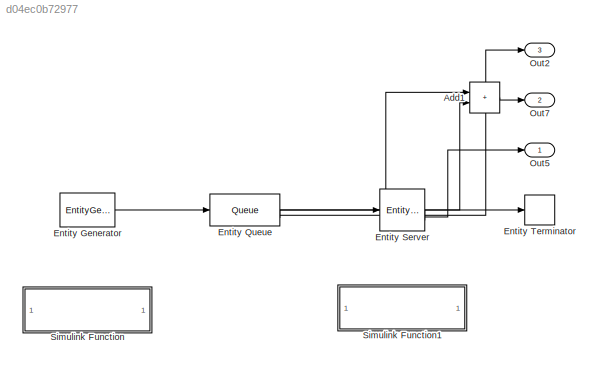
MODEL slx_d04ec0b72977
KIND model
CONFIG AbsTol = auto
CONFIG EnableMultiTasking = off
CONFIG FixedStep = auto
CONFIG MaxStep = auto
CONFIG MinStep = auto
CONFIG RelTol = 1e-3
CONFIG SampleTimeConstraint = Unconstrained
CONFIG SolverName = VariableStepAuto
CONFIG StartTime = 0.0
CONFIG StopTime = 10000
BLOCK [Sum] Add1
  IconShape = rectangular
BLOCK [EntityGenerator] Entity Generator
  EntityType = Structured
  EntityTypeName = Entity
  IntergenerationTimeAction = dt = arrivalProcess();
  OutputPortMap = o3
  OutputPortMessageModes = m
  TimeSource = MATLAB action
BLOCK [Queue] Entity Queue
  AverageQueueLength = on
  AverageWait = on
  Capacity = inf
  InputPortMap = u0
  InputPortMessageModes = m
  OutputPortMap = o2,o3,o5
  OutputPortMessageModes = n,n,m
BLOCK [EntityServer] Entity Server
  AverageWait = on
  Capacity = c
  InputPortMap = u2
  InputPortMessageModes = m
  OutputPortMap = o4,o5,o9
  OutputPortMessageModes = n,n,m
  ServiceTimeAction = dt = serviceProcess();
  ServiceTimeSource = MATLAB action
  Utilization = on
BLOCK [EntityTerminator] Entity Terminator
  InputPortMap = u0
  InputPortMessageModes = m
BLOCK [Outport] Out2
  Port = 3
  SignalName = queue_length
BLOCK [Outport] Out5
  SignalName = util_server
BLOCK [Outport] Out7
  Port = 2
  SignalName = wait
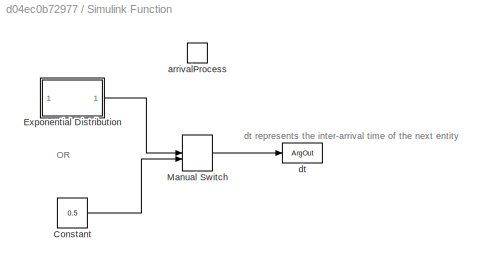
BLOCK [SubSystem] Simulink Function
  TreatAsAtomicUnit = on
BLOCK [Constant] Simulink Function/Constant
  Value = 0.5
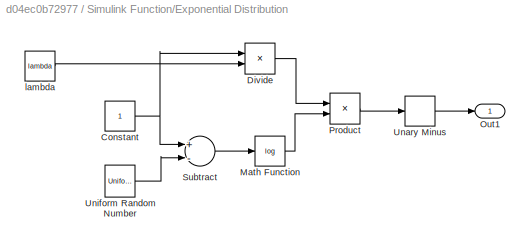
BLOCK [SubSystem] Simulink Function/Exponential Distribution
BLOCK [Constant] Simulink Function/Exponential Distribution/Constant
BLOCK [Product] Simulink Function/Exponential Distribution/Divide
  Inputs = */
BLOCK [Math] Simulink Function/Exponential Distribution/Math Function
  Operator = log
BLOCK [Outport] Simulink Function/Exponential Distribution/Out1
BLOCK [Product] Simulink Function/Exponential Distribution/Product
BLOCK [Sum] Simulink Function/Exponential Distribution/Subtract
  Inputs = +-
BLOCK [UnaryMinus] Simulink Function/Exponential Distribution/Unary Minus
BLOCK [UniformRandomNumber] Simulink Function/Exponential Distribution/Uniform Random Number
  Minimum = 0
  Seed = 12345
BLOCK [Constant] Simulink Function/Exponential Distribution/lambda
  Value = lambda
BLOCK [ManualSwitch] Simulink Function/Manual Switch
BLOCK [TriggerPort] Simulink Function/arrivalProcess
  FunctionName = arrivalProcess
  IsSimulinkFunction = on
  StatesWhenEnabling = held
  TriggerType = function-call
  VariantControl = Variant
BLOCK [ArgOut] Simulink Function/dt
  ArgumentName = dt
  DisableCoverage = on
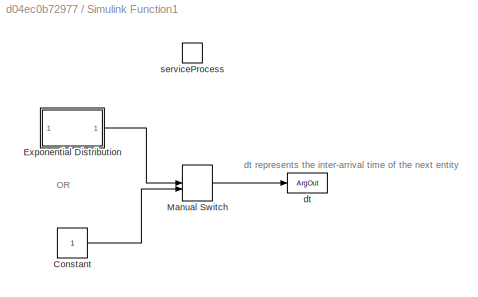
BLOCK [SubSystem] Simulink Function1
  TreatAsAtomicUnit = on
BLOCK [Constant] Simulink Function1/Constant
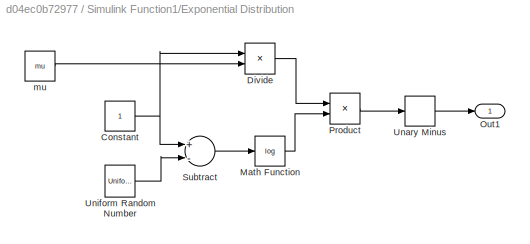
BLOCK [SubSystem] Simulink Function1/Exponential Distribution
BLOCK [Constant] Simulink Function1/Exponential Distribution/Constant
BLOCK [Product] Simulink Function1/Exponential Distribution/Divide
  Inputs = */
BLOCK [Math] Simulink Function1/Exponential Distribution/Math Function
  Operator = log
BLOCK [Outport] Simulink Function1/Exponential Distribution/Out1
BLOCK [Product] Simulink Function1/Exponential Distribution/Product
BLOCK [Sum] Simulink Function1/Exponential Distribution/Subtract
  Inputs = +-
BLOCK [UnaryMinus] Simulink Function1/Exponential Distribution/Unary Minus
BLOCK [UniformRandomNumber] Simulink Function1/Exponential Distribution/Uniform Random Number
  Minimum = 0
  Seed = 98765
BLOCK [Constant] Simulink Function1/Exponential Distribution/mu
  Value = mu
BLOCK [ManualSwitch] Simulink Function1/Manual Switch
BLOCK [ArgOut] Simulink Function1/dt
  ArgumentName = dt
  DisableCoverage = on
BLOCK [TriggerPort] Simulink Function1/serviceProcess
  FunctionName = serviceProcess
  IsSimulinkFunction = on
  StatesWhenEnabling = held
  TriggerType = function-call
  VariantControl = Variant
ANNOTATION Simulink Function: OR
ANNOTATION Simulink Function: dt represents the inter-arrival time of the next entity
ANNOTATION Simulink Function1: OR
ANNOTATION Simulink Function1: dt represents the inter-arrival time of the next entity
LINE Add1:1 -> Out7:1
LINE Entity Generator:1 -> Entity Queue:1
LINE Entity Queue:1 -> Add1:1
LINE Entity Queue:2 -> Out2:1
LINE Entity Queue:3 -> Entity Server:1
LINE Entity Server:1 -> Add1:2
LINE Entity Server:2 -> Out5:1
LINE Entity Server:3 -> Entity Terminator:1
LINE Simulink Function/Constant:1 -> Simulink Function/Manual Switch:2
NET Simulink Function/Exponential Distribution/Constant:1 -> Simulink Function/Exponential Distribution/Divide:1, Simulink Function/Exponential Distribution/Subtract:1
LINE Simulink Function/Exponential Distribution/Divide:1 -> Simulink Function/Exponential Distribution/Product:1
LINE Simulink Function/Exponential Distribution/Math Function:1 -> Simulink Function/Exponential Distribution/Product:2
LINE Simulink Function/Exponential Distribution/Product:1 -> Simulink Function/Exponential Distribution/Unary Minus:1
LINE Simulink Function/Exponential Distribution/Subtract:1 -> Simulink Function/Exponential Distribution/Math Function:1
LINE Simulink Function/Exponential Distribution/Unary Minus:1 -> Simulink Function/Exponential Distribution/Out1:1
LINE Simulink Function/Exponential Distribution/Uniform Random Number:1 -> Simulink Function/Exponential Distribution/Subtract:2
LINE Simulink Function/Exponential Distribution/lambda:1 -> Simulink Function/Exponential Distribution/Divide:2
LINE Simulink Function/Exponential Distribution:1 -> Simulink Function/Manual Switch:1
LINE Simulink Function/Manual Switch:1 -> Simulink Function/dt:1
LINE Simulink Function1/Constant:1 -> Simulink Function1/Manual Switch:2
NET Simulink Function1/Exponential Distribution/Constant:1 -> Simulink Function1/Exponential Distribution/Divide:1, Simulink Function1/Exponential Distribution/Subtract:1
LINE Simulink Function1/Exponential Distribution/Divide:1 -> Simulink Function1/Exponential Distribution/Product:1
LINE Simulink Function1/Exponential Distribution/Math Function:1 -> Simulink Function1/Exponential Distribution/Product:2
LINE Simulink Function1/Exponential Distribution/Product:1 -> Simulink Function1/Exponential Distribution/Unary Minus:1
LINE Simulink Function1/Exponential Distribution/Subtract:1 -> Simulink Function1/Exponential Distribution/Math Function:1
LINE Simulink Function1/Exponential Distribution/Unary Minus:1 -> Simulink Function1/Exponential Distribution/Out1:1
LINE Simulink Function1/Exponential Distribution/Uniform Random Number:1 -> Simulink Function1/Exponential Distribution/Subtract:2
LINE Simulink Function1/Exponential Distribution/mu:1 -> Simulink Function1/Exponential Distribution/Divide:2
LINE Simulink Function1/Exponential Distribution:1 -> Simulink Function1/Manual Switch:1
LINE Simulink Function1/Manual Switch:1 -> Simulink Function1/dt:1
note: NET lines group one-source signal fan-out (src -> all destinations, sorted); 1:1 wires keep LINE
